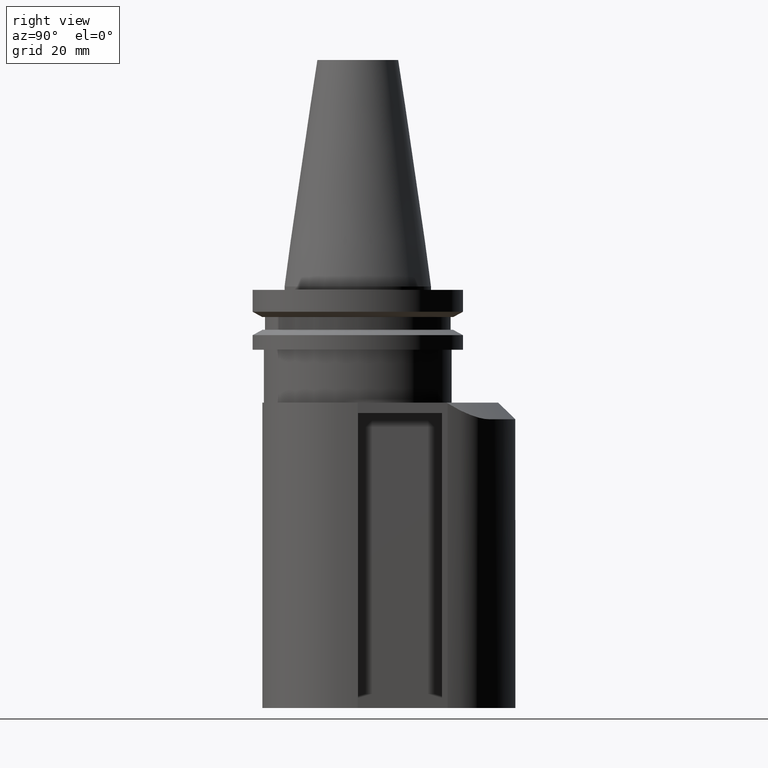
[diagram: clean part render]
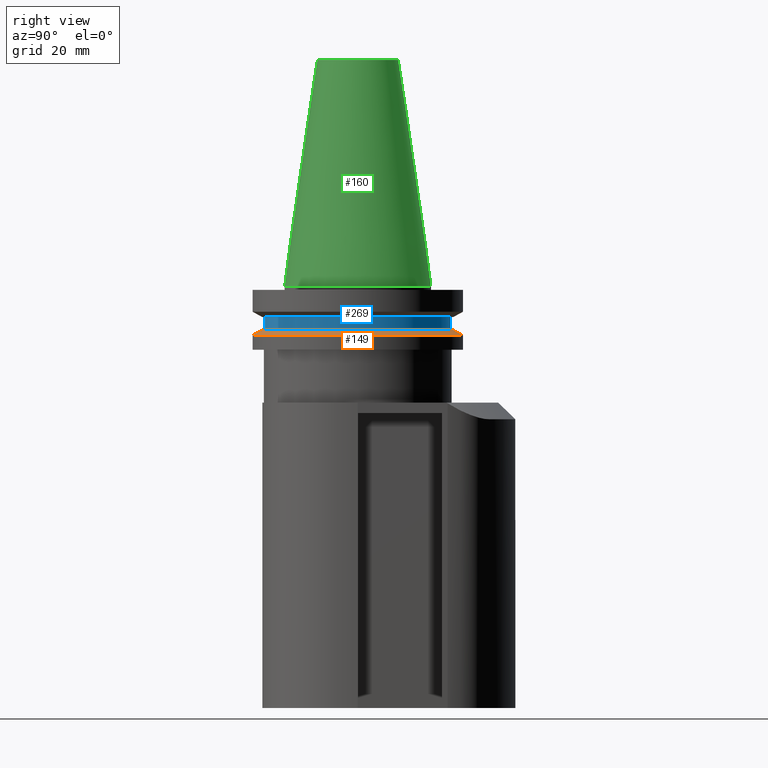
[diagram: same view with three faces highlighted in distinct colors, each labeled with its STEP entity id]
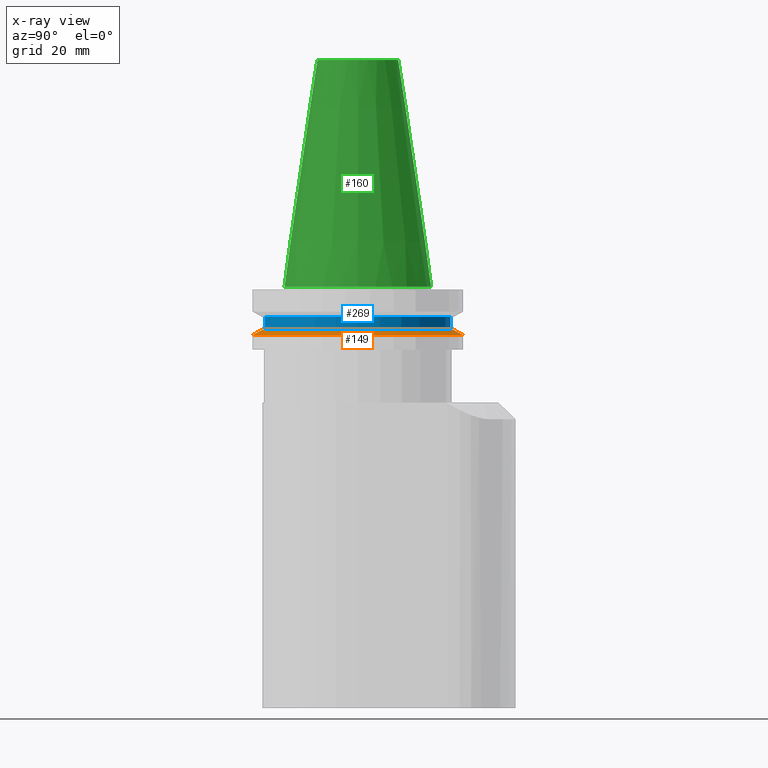
[diagram: x-ray of the same camera — body ghosted, the three highlighted faces saturated]
A machine part, right view with three faces highlighted in distinct colors.
The next image is the same camera in x-ray (body ghosted, the three faces saturated) — at least one of them is partly hidden behind the body in this view.
Their STEP definitions:

[orange] entity #149 — the highlighted conical surface has half-angle 60 deg.
#129=EDGE_CURVE('Unnamed[1]',#356,#356,#357,.T.);
#149=ADVANCED_FACE('Unnamed[1]',(#385,#386),#387,.T.);
#277=EDGE_CURVE('Unnamed[1]',#563,#563,#564,.T.);
#356=VERTEX_POINT('',#654);
#357=CIRCLE('',#655,28.95591319);
#385=FACE_BOUND('',#700,.T.);
#386=FACE_BOUND('',#701,.T.);
#387=CONICAL_SURFACE('',#702,30.352956595,1.04719755170464);
#563=VERTEX_POINT('',#967);
#564=CIRCLE('',#968,31.75);
#654=CARTESIAN_POINT('',(-28.9559131899999,4.52064524763422E-015,-13.04));
#655=AXIS2_PLACEMENT_3D('',#1065,#1066,#1067);
#700=EDGE_LOOP('',(#1100));
#701=EDGE_LOOP('',(#1101));
#702=AXIS2_PLACEMENT_3D('',#1102,#1103,#1104);
#967=CARTESIAN_POINT('',(-31.7499999999999,4.9351326918266E-015,-14.65316677));
#968=AXIS2_PLACEMENT_3D('',#1317,#1318,#1319);
#1065=CARTESIAN_POINT('',(1.0157896856542E-013,-7.98469713044093E-016,-13.04));
#1066=DIRECTION('',(1.33746078076942E-015,-6.12323399573679E-017,-1.0));
#1067=DIRECTION('',(-1.0,1.83697019872103E-016,-1.33746078076942E-015));
#1100=ORIENTED_EDGE('',*,*,#277,.F.);
#1101=ORIENTED_EDGE('',*,*,#129,.T.);
#1102=CARTESIAN_POINT('',(1.02657742209278E-013,-8.47858701078377E-016,-13.846583385));
#1103=DIRECTION('',(1.33746078076942E-015,-6.12323399573679E-017,-1.0));
#1104=DIRECTION('',(-1.0,1.83697019872103E-016,-1.33746078076942E-015));
#1317=CARTESIAN_POINT('',(1.03736515853136E-013,-8.97247689112662E-016,-14.65316677));
#1318=DIRECTION('',(1.33746078076942E-015,-6.12323399573679E-017,-1.0));
#1319=DIRECTION('',(-1.0,1.83697019872103E-016,-1.33746078076942E-015));

[blue] entity #269 — the highlighted cylindrical surface (bore or boss wall) has radius 28.18 mm, axis along (0, -0, -1).
#269=ADVANCED_FACE('Unnamed[1]',(#551,#552),#553,.T.);
#275=EDGE_CURVE('Unnamed[1]',#560,#560,#561,.T.);
#281=EDGE_CURVE('Unnamed[1]',#568,#568,#569,.T.);
#551=FACE_BOUND('',#950,.T.);
#552=FACE_BOUND('',#951,.T.);
#553=CYLINDRICAL_SURFACE('',#952,28.18);
#560=VERTEX_POINT('',#963);
#561=CIRCLE('',#964,28.18);
#568=VERTEX_POINT('',#993);
#569=CIRCLE('',#994,28.18);
#950=EDGE_LOOP('',(#1305));
#951=EDGE_LOOP('',(#1306));
#952=AXIS2_PLACEMENT_3D('',#1307,#1308,#1309);
#963=CARTESIAN_POINT('',(-28.1799999999999,4.61324449238806E-015,-9.20000000000004));
#964=AXIS2_PLACEMENT_3D('',#1314,#1315,#1316);
#993=CARTESIAN_POINT('',(-28.1799999999999,4.37811230695177E-015,-13.04));
#994=AXIS2_PLACEMENT_3D('',#1320,#1321,#1322);
#1305=ORIENTED_EDGE('',*,*,#281,.F.);
#1306=ORIENTED_EDGE('',*,*,#275,.T.);
#1307=CARTESIAN_POINT('',(9.90110438663431E-014,-6.80903620325947E-016,-11.12));
#1308=DIRECTION('',(1.33746078076942E-015,-6.12323399573679E-017,-1.0));
#1309=DIRECTION('',(-1.0,1.83697019872103E-016,-1.33746078076942E-015));
#1314=CARTESIAN_POINT('',(9.64431191672658E-014,-5.63337527607801E-016,-9.2));
#1315=DIRECTION('',(1.33746078076942E-015,-6.12323399573679E-017,-1.0));
#1316=DIRECTION('',(-1.0,1.83697019872103E-016,-1.33746078076942E-015));
#1320=CARTESIAN_POINT('',(1.0157896856542E-013,-7.98469713044093E-016,-13.04));
#1321=DIRECTION('',(1.33746078076942E-015,-6.12323399573679E-017,-1.0));
#1322=DIRECTION('',(-1.0,1.83697019872103E-016,-1.33746078076942E-015));

[green] entity #160 — the highlighted conical surface has half-angle 8.297 deg.
#125=EDGE_CURVE('Unnamed[1]',#349,#349,#350,.T.);
#146=EDGE_CURVE('Unnamed[1]',#381,#381,#382,.T.);
#160=ADVANCED_FACE('Unnamed[1]',(#400,#401),#402,.T.);
#349=VERTEX_POINT('',#644);
#350=CIRCLE('',#645,12.2718750014769);
#381=VERTEX_POINT('',#695);
#382=CIRCLE('',#696,22.225);
#400=FACE_BOUND('',#719,.T.);
#401=FACE_BOUND('',#720,.T.);
#402=CONICAL_SURFACE('',#721,17.2484375007384,0.144812498217751);
#644=CARTESIAN_POINT('',(-12.2718750014769,6.43341406810461E-015,68.25));
#645=AXIS2_PLACEMENT_3D('',#1061,#1062,#1063);
#695=CARTESIAN_POINT('',(-22.2249999999999,4.08266626665747E-015,-2.97250658526004E-014));
#696=AXIS2_PLACEMENT_3D('',#1096,#1097,#1098);
#719=EDGE_LOOP('',(#1120));
#720=EDGE_LOOP('',(#1121));
#721=AXIS2_PLACEMENT_3D('',#1122,#1123,#1124);
#1061=CARTESIAN_POINT('',(-7.14321830332606E-015,4.17910720209035E-015,68.25));
#1062=DIRECTION('',(1.33746078076942E-015,-6.12323399573679E-017,-1.0));
#1063=DIRECTION('',(-1.0,1.83697019872103E-016,-1.33746078076942E-015));
#1096=CARTESIAN_POINT('',(8.41384799841871E-014,-1.54559880296638E-029,1.03039920197758E-029));
#1097=DIRECTION('',(1.33746078076942E-015,-6.12323399573679E-017,-1.0));
#1098=DIRECTION('',(-1.0,1.83697019872103E-016,-1.33746078076942E-015));
#1120=ORIENTED_EDGE('',*,*,#146,.F.);
#1121=ORIENTED_EDGE('',*,*,#125,.T.);
#1122=CARTESIAN_POINT('',(3.84976308404306E-014,2.08955360104516E-015,34.125));
#1123=DIRECTION('',(1.33746078076942E-015,-6.12323399573679E-017,-1.0));
#1124=DIRECTION('',(-1.0,1.83697019872103E-016,-1.33746078076942E-015));